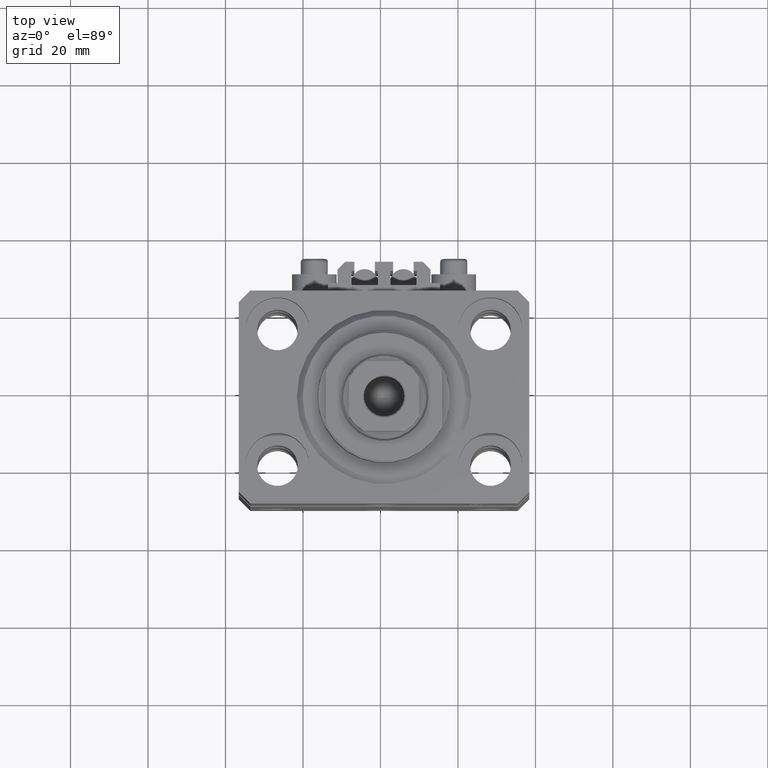
[diagram: clean part render]
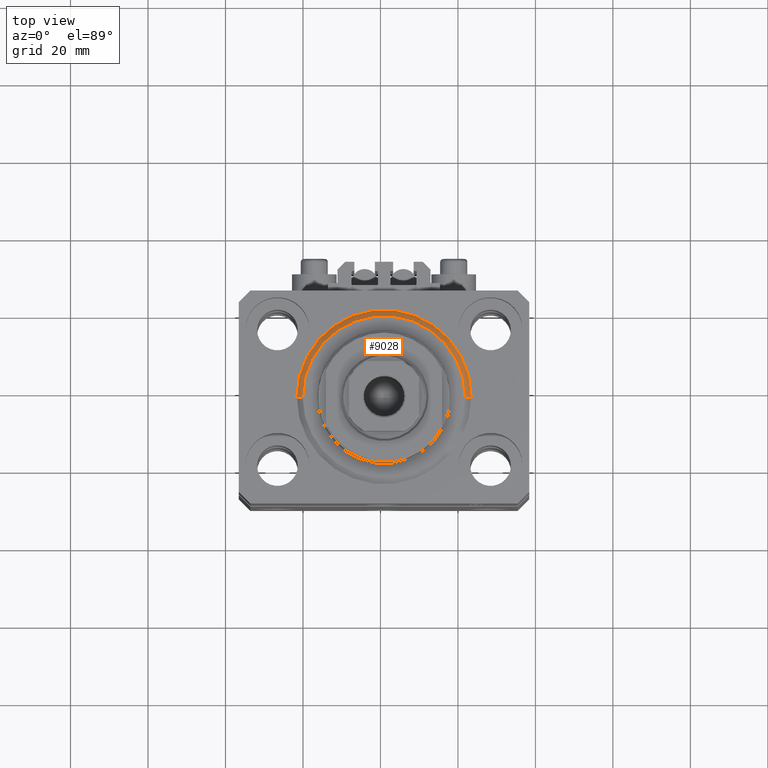
[diagram: same view with one face highlighted and labeled with its STEP entity id]
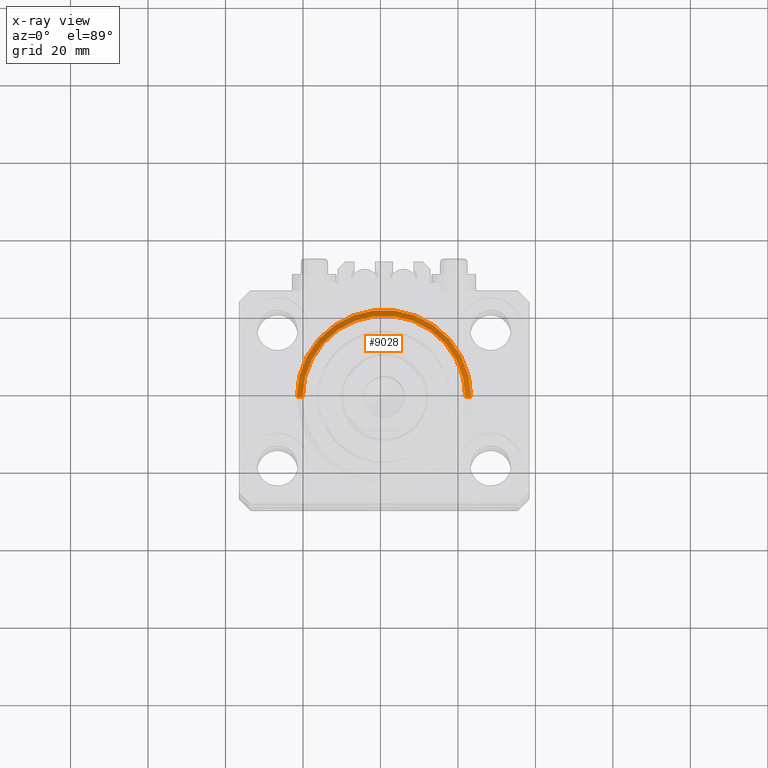
[diagram: x-ray of the same camera — body ghosted, the highlighted face saturated]
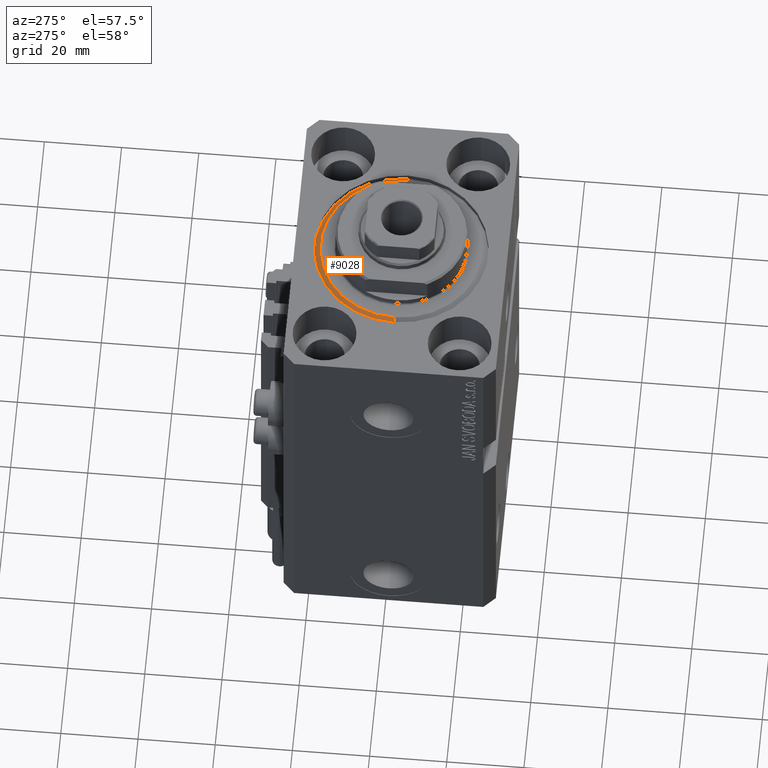
[diagram: same view with one face highlighted and labeled with its STEP entity id]
A machine part, top view. The second image highlights one B-rep face of the part: STEP entity #9028.
The next image is the same camera in x-ray: the body ghosted, the highlighted face saturated — about 0% of this face is hidden behind the body in this view.
A second angle (auxiliary view) of the same face is appended — the face is thin or edge-on in the first view.
In plain terms, the highlighted conical surface has half-angle 45 deg.
Its self-contained STEP definition (entity closure, byte-faithful):
#460 = DIRECTION ( 'NONE',  ( -0.000000000000000000, -0.000000000000000000, 1.000000000000000000 ) ) ;
#806 = DIRECTION ( 'NONE',  ( 1.000000000000000000, 0.000000000000000000, 0.000000000000000000 ) ) ;
#3330 = ORIENTED_EDGE ( 'NONE', *, *, #40707, .F. ) ;
#4362 = ORIENTED_EDGE ( 'NONE', *, *, #7570, .T. ) ;
#4363 = CARTESIAN_POINT ( 'NONE',  ( 0.000000000000000000, 0.000000000000000000, 1.500000000000001332 ) ) ;
#5350 = VECTOR ( 'NONE', #46265, 1000.000000000000114 ) ;
#6054 = DIRECTION ( 'NONE',  ( -0.000000000000000000, -0.000000000000000000, -1.000000000000000000 ) ) ;
#7541 = VERTEX_POINT ( 'NONE', #28462 ) ;
#7570 = EDGE_CURVE ( 'NONE', #24496, #18309, #43575, .T. ) ;
#8262 = FACE_OUTER_BOUND ( 'NONE', #28202, .T. ) ;
#8539 = AXIS2_PLACEMENT_3D ( 'NONE', #13616, #6054, #36229 ) ;
#9028 = ADVANCED_FACE ( 'NONE', ( #8262 ), #22485, .T. ) ;
#9411 = CARTESIAN_POINT ( 'NONE',  ( 22.50000000000000355, 0.000000000000000000, 1.500000000000001332 ) ) ;
#13616 = CARTESIAN_POINT ( 'NONE',  ( 0.000000000000000000, 0.000000000000000000, 0.000000000000000000 ) ) ;
#14925 = VECTOR ( 'NONE', #32039, 1000.000000000000114 ) ;
#16143 = CARTESIAN_POINT ( 'NONE',  ( 0.000000000000000000, 0.000000000000000000, 1.500000000000001332 ) ) ;
#18309 = VERTEX_POINT ( 'NONE', #21802 ) ;
#19560 = DIRECTION ( 'NONE',  ( -0.000000000000000000, -0.000000000000000000, 1.000000000000000000 ) ) ;
#21802 = CARTESIAN_POINT ( 'NONE',  ( -22.50000000000000355, 0.000000000000000000, 1.500000000000001332 ) ) ;
#21967 = ORIENTED_EDGE ( 'NONE', *, *, #35193, .F. ) ;
#22485 = CONICAL_SURFACE ( 'NONE', #38021, 22.50000000000000355, 0.7853981633974517207 ) ;
#24253 = EDGE_CURVE ( 'NONE', #7541, #18309, #47304, .T. ) ;
#24496 = VERTEX_POINT ( 'NONE', #40207 ) ;
#25032 = ORIENTED_EDGE ( 'NONE', *, *, #24253, .F. ) ;
#27144 = CIRCLE ( 'NONE', #8539, 20.99999999999998934 ) ;
#28202 = EDGE_LOOP ( 'NONE', ( #3330, #4362, #25032, #21967 ) ) ;
#28281 = CARTESIAN_POINT ( 'NONE',  ( 20.99999999999998934, 0.000000000000000000, 0.000000000000000000 ) ) ;
#28462 = CARTESIAN_POINT ( 'NONE',  ( 22.50000000000000355, 2.755455298081545172E-15, 1.500000000000001332 ) ) ;
#32039 = DIRECTION ( 'NONE',  ( 0.7071067811865500152, 0.000000000000000000, 0.7071067811865451302 ) ) ;
#32508 = LINE ( 'NONE', #9411, #14925 ) ;
#32517 = AXIS2_PLACEMENT_3D ( 'NONE', #16143, #19560, #806 ) ;
#35193 = EDGE_CURVE ( 'NONE', #37354, #7541, #32508, .T. ) ;
#36229 = DIRECTION ( 'NONE',  ( 1.000000000000000000, 0.000000000000000000, 0.000000000000000000 ) ) ;
#37354 = VERTEX_POINT ( 'NONE', #28281 ) ;
#38021 = AXIS2_PLACEMENT_3D ( 'NONE', #4363, #460, #41616 ) ;
#39416 = CARTESIAN_POINT ( 'NONE',  ( -22.50000000000000355, 2.755455298081545172E-15, 1.500000000000001332 ) ) ;
#40207 = CARTESIAN_POINT ( 'NONE',  ( -20.99999999999998934, 2.663606788145492628E-15, 0.000000000000000000 ) ) ;
#40707 = EDGE_CURVE ( 'NONE', #24496, #37354, #27144, .T. ) ;
#41616 = DIRECTION ( 'NONE',  ( 1.000000000000000000, 0.000000000000000000, 0.000000000000000000 ) ) ;
#43575 = LINE ( 'NONE', #39416, #5350 ) ;
#46265 = DIRECTION ( 'NONE',  ( -0.7071067811865500152, 8.659560562354963673E-17, 0.7071067811865451302 ) ) ;
#47304 = CIRCLE ( 'NONE', #32517, 22.50000000000000355 ) ;